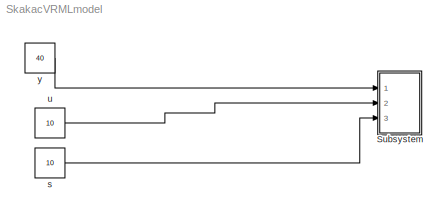
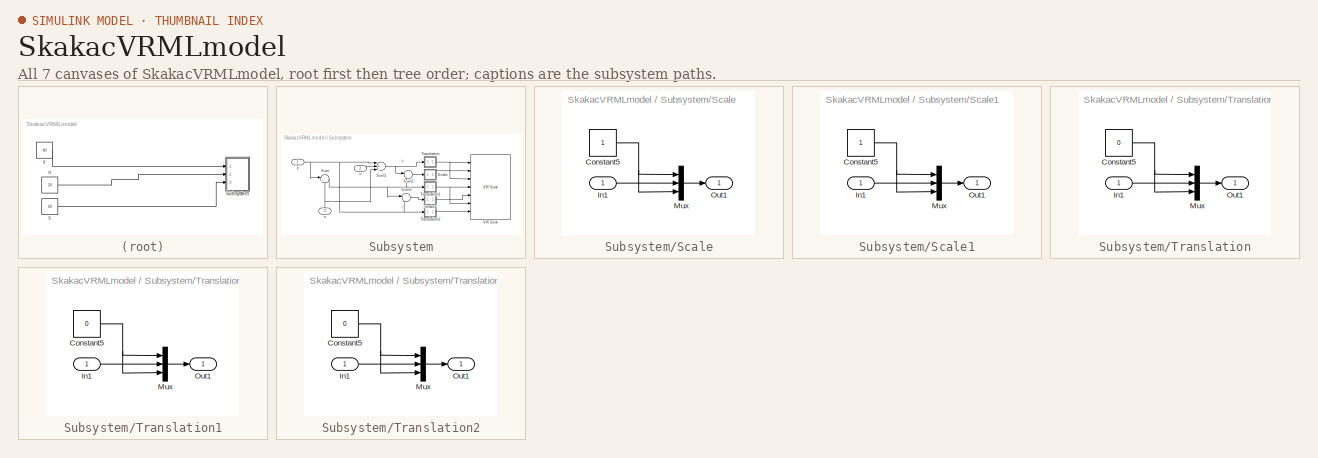
[diagram: thumbnail index - all 7 canvases of the model, root first then tree order]
MODEL SkakacVRMLmodel
KIND model
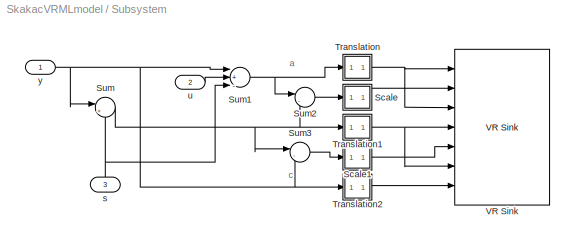
BLOCK [SubSystem] Subsystem
  FunctionWithSeparateData = off
  MaskHideContents = off
  MinAlgLoopOccurrences = off
  Opaque = off
  Ports = [3]
  PropExecContextOutsideSubsystem = off
  RTWSystemCode = Auto
  RequestExecContextInheritance = off
  SID = 125
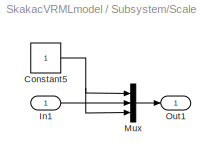
BLOCK [SubSystem] Subsystem/Scale
  FunctionWithSeparateData = off
  MaskHideContents = off
  MinAlgLoopOccurrences = off
  Opaque = off
  Ports = [1, 1]
  PropExecContextOutsideSubsystem = off
  RTWSystemCode = Auto
  RequestExecContextInheritance = off
  SID = 111
BLOCK [Constant] Subsystem/Scale/Constant5
  SID = 113
BLOCK [Inport] Subsystem/Scale/In1
  IconDisplay = Port number
  SID = 112
BLOCK [Mux] Subsystem/Scale/Mux
  DisplayOption = bar
  Inputs = 3
  Ports = [3, 1]
  SID = 114
BLOCK [Outport] Subsystem/Scale/Out1
  IconDisplay = Port number
  SID = 115
BLOCK [SubSystem] Subsystem/Scale1
  FunctionWithSeparateData = off
  MaskHideContents = off
  MinAlgLoopOccurrences = off
  Opaque = off
  Ports = [1, 1]
  PropExecContextOutsideSubsystem = off
  RTWSystemCode = Auto
  RequestExecContextInheritance = off
  SID = 120
BLOCK [Constant] Subsystem/Scale1/Constant5
  SID = 122
BLOCK [Inport] Subsystem/Scale1/In1
  IconDisplay = Port number
  SID = 121
BLOCK [Mux] Subsystem/Scale1/Mux
  DisplayOption = bar
  Inputs = 3
  Ports = [3, 1]
  SID = 123
BLOCK [Outport] Subsystem/Scale1/Out1
  IconDisplay = Port number
  SID = 124
BLOCK [Sum] Subsystem/Sum
  IconShape = round
  InputSameDT = off
  Inputs = |+-
  OutDataTypeStr = Inherit: Inherit via internal rule
  Ports = [2, 1]
  SID = 96
  SaturateOnIntegerOverflow = off
BLOCK [Sum] Subsystem/Sum1
  InputSameDT = off
  Inputs = |+--
  OutDataTypeStr = Inherit: Inherit via internal rule
  Ports = [3, 1]
  SID = 97
  SaturateOnIntegerOverflow = off
BLOCK [Sum] Subsystem/Sum2
  IconShape = round
  InputSameDT = off
  Inputs = |-+
  OutDataTypeStr = Inherit: Inherit via internal rule
  Ports = [2, 1]
  SID = 118
  SaturateOnIntegerOverflow = off
BLOCK [Sum] Subsystem/Sum3
  IconShape = round
  InputSameDT = off
  Inputs = |-+
  OutDataTypeStr = Inherit: Inherit via internal rule
  Ports = [2, 1]
  SID = 119
  SaturateOnIntegerOverflow = off
BLOCK [SubSystem] Subsystem/Translation
  FunctionWithSeparateData = off
  MaskHideContents = off
  MinAlgLoopOccurrences = off
  Opaque = off
  Ports = [1, 1]
  PropExecContextOutsideSubsystem = off
  RTWSystemCode = Auto
  RequestExecContextInheritance = off
  SID = 98
BLOCK [Constant] Subsystem/Translation/Constant5
  SID = 78
  Value = 0
BLOCK [Inport] Subsystem/Translation/In1
  IconDisplay = Port number
  SID = 99
BLOCK [Mux] Subsystem/Translation/Mux
  DisplayOption = bar
  Inputs = 3
  Ports = [3, 1]
  SID = 84
BLOCK [Outport] Subsystem/Translation/Out1
  IconDisplay = Port number
  SID = 100
BLOCK [SubSystem] Subsystem/Translation1
  FunctionWithSeparateData = off
  MaskHideContents = off
  MinAlgLoopOccurrences = off
  Opaque = off
  Ports = [1, 1]
  PropExecContextOutsideSubsystem = off
  RTWSystemCode = Auto
  RequestExecContextInheritance = off
  SID = 101
BLOCK [Constant] Subsystem/Translation1/Constant5
  SID = 103
  Value = 0
BLOCK [Inport] Subsystem/Translation1/In1
  IconDisplay = Port number
  SID = 102
BLOCK [Mux] Subsystem/Translation1/Mux
  DisplayOption = bar
  Inputs = 3
  Ports = [3, 1]
  SID = 104
BLOCK [Outport] Subsystem/Translation1/Out1
  IconDisplay = Port number
  SID = 105
BLOCK [SubSystem] Subsystem/Translation2
  FunctionWithSeparateData = off
  MaskHideContents = off
  MinAlgLoopOccurrences = off
  Opaque = off
  Ports = [1, 1]
  PropExecContextOutsideSubsystem = off
  RTWSystemCode = Auto
  RequestExecContextInheritance = off
  SID = 106
BLOCK [Constant] Subsystem/Translation2/Constant5
  SID = 108
  Value = 0
BLOCK [Inport] Subsystem/Translation2/In1
  IconDisplay = Port number
  SID = 107
BLOCK [Mux] Subsystem/Translation2/Mux
  DisplayOption = bar
  Inputs = 3
  Ports = [3, 1]
  SID = 109
BLOCK [Outport] Subsystem/Translation2/Out1
  IconDisplay = Port number
  SID = 110
BLOCK [Reference] Subsystem/VR Sink  REF=vrlib/VR Sink
  AutoView = off
  FieldsWritten = ALFA.translation.3.1.1.double#Opruga.scale.3.1.1.double#Opruga.translation.3.1.1.double#MASS2.translation.3.1.1.double#PRISMATIC.scale.3.1.1.double#PRISMATIC.translation.3.1.1.double#MASS1.translation.3.1.1.double
  FigureProperties = {'Position', 'Name', 'Viewpoint', 'CameraBound', 'CameraDirection', 'CameraPosition', 'CameraUpVector', 'ZoomFactor', 'Antialiasing', 'Headlight', 'Lighting', 'NavPanel', 'StatusBar', 'ToolBar', 'Textures', 'Transparency', 'Wireframe', 'NavZones', 'NavMode', 'NavSpeed', 'Record2DCompressMethod', 'Record2DCompressQuality', 'Record2D', 'Record2DFileName', 'Record2DFPS'; [5.0000000000000000e+000  9.2...<+515ch>
  Ports = [7]
  RemoteChange = off
  RemoteView = on
  SID = 92
  SampleTime = -1
  SourceBlock = vrlib/VR Sink
  SourceType = Virtual Reality Sink
  VideoDimensions = []
  ViewEnable = on
  WorldFileName = skakac2.WRL
BLOCK [Inport] Subsystem/s
  IconDisplay = Port number
  Port = 3
  SID = 128
BLOCK [Inport] Subsystem/u
  IconDisplay = Port number
  Port = 2
  SID = 127
BLOCK [Inport] Subsystem/y
  IconDisplay = Port number
  SID = 126
BLOCK [Constant] s
  SID = 95
  Value = 10
BLOCK [Constant] u
  SID = 54
  Value = 10
BLOCK [Constant] y
  SID = 40
  Value = 40
ANNOTATION Subsystem: a
ANNOTATION Subsystem: c
NET Subsystem/Scale/Constant5:1 -> Subsystem/Scale/Mux:1, Subsystem/Scale/Mux:3
LINE Subsystem/Scale/In1:1 -> Subsystem/Scale/Mux:2
LINE Subsystem/Scale/Mux:1 -> Subsystem/Scale/Out1:1
NET Subsystem/Scale1/Constant5:1 -> Subsystem/Scale1/Mux:1, Subsystem/Scale1/Mux:3
LINE Subsystem/Scale1/In1:1 -> Subsystem/Scale1/Mux:2
LINE Subsystem/Scale1/Mux:1 -> Subsystem/Scale1/Out1:1
LINE Subsystem/Scale1:1 -> Subsystem/VR Sink:5
LINE Subsystem/Scale:1 -> Subsystem/VR Sink:2
NET Subsystem/Sum1:1 -> Subsystem/Sum2:1, Subsystem/Translation:1
LINE Subsystem/Sum2:1 -> Subsystem/Scale:1
LINE Subsystem/Sum3:1 -> Subsystem/Scale1:1
NET Subsystem/Sum:1 -> Subsystem/Sum2:2, Subsystem/Sum3:1, Subsystem/Translation1:1
NET Subsystem/Translation/Constant5:1 -> Subsystem/Translation/Mux:1, Subsystem/Translation/Mux:3
LINE Subsystem/Translation/In1:1 -> Subsystem/Translation/Mux:2
LINE Subsystem/Translation/Mux:1 -> Subsystem/Translation/Out1:1
NET Subsystem/Translation1/Constant5:1 -> Subsystem/Translation1/Mux:1, Subsystem/Translation1/Mux:3
LINE Subsystem/Translation1/In1:1 -> Subsystem/Translation1/Mux:2
LINE Subsystem/Translation1/Mux:1 -> Subsystem/Translation1/Out1:1
NET Subsystem/Translation1:1 -> Subsystem/VR Sink:4, Subsystem/VR Sink:6
NET Subsystem/Translation2/Constant5:1 -> Subsystem/Translation2/Mux:1, Subsystem/Translation2/Mux:3
LINE Subsystem/Translation2/In1:1 -> Subsystem/Translation2/Mux:2
LINE Subsystem/Translation2/Mux:1 -> Subsystem/Translation2/Out1:1
LINE Subsystem/Translation2:1 -> Subsystem/VR Sink:7
NET Subsystem/Translation:1 -> Subsystem/VR Sink:1, Subsystem/VR Sink:3
NET Subsystem/s:1 -> Subsystem/Sum1:3, Subsystem/Sum:2
LINE Subsystem/u:1 -> Subsystem/Sum1:2
NET Subsystem/y:1 -> Subsystem/Sum1:1, Subsystem/Sum3:2, Subsystem/Sum:1, Subsystem/Translation2:1
LINE s:1 -> Subsystem:3
LINE u:1 -> Subsystem:2
LINE y:1 -> Subsystem:1
note: NET lines group one-source signal fan-out (src -> all destinations, sorted); 1:1 wires keep LINE
